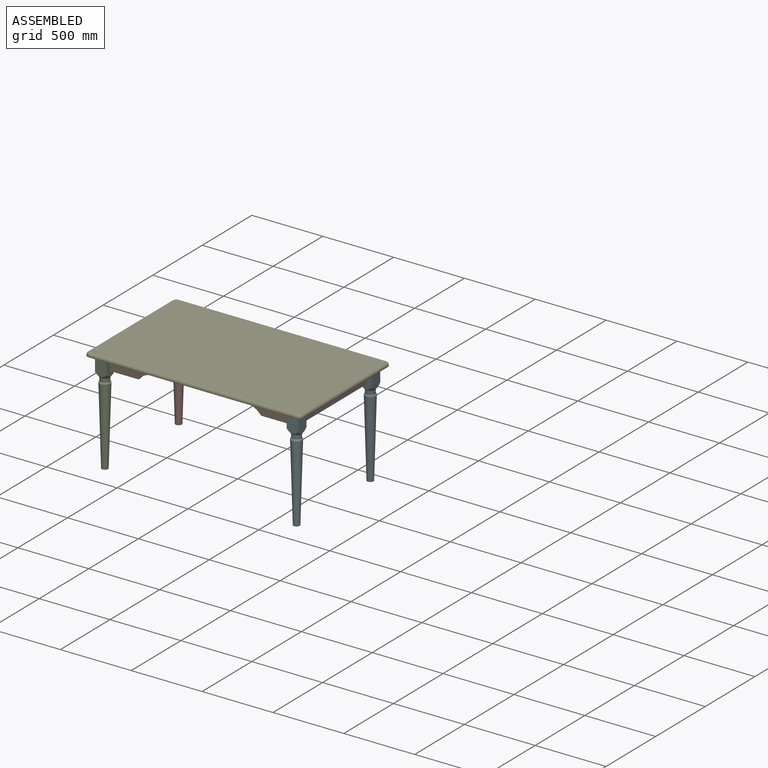
[diagram: assembled view]
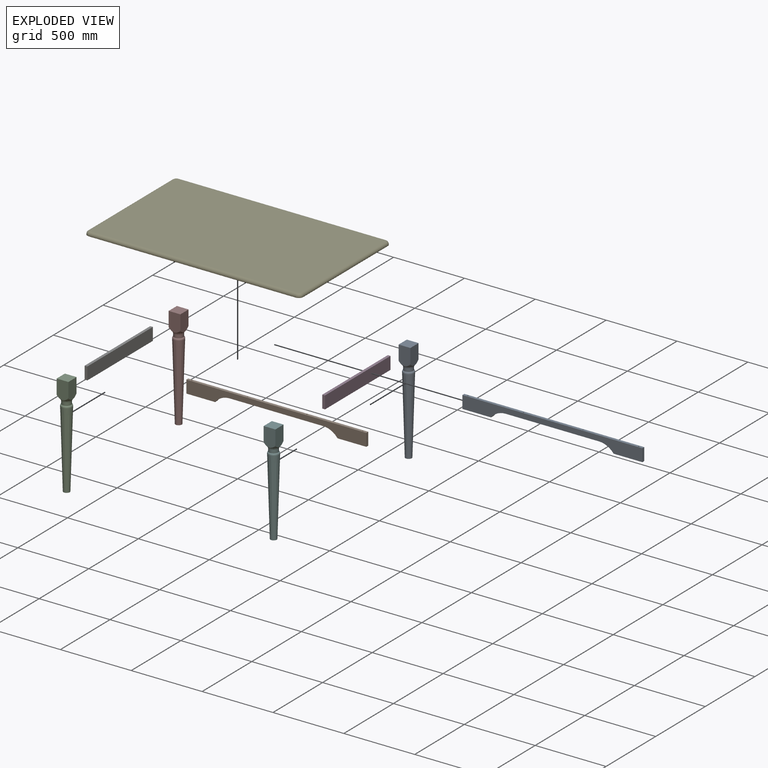
[diagram: exploded view]
GUIDED TOUR — MATED ASSEMBLY (Onshape document 7cd60d797cd535b59eb3e739, AutoMate assembly 7cd60d797cd535b59eb3e739_82e53eb9be413ad200fd0cf4_9cd672948b38c9585e956409_default)

This assembly has 9 components, labeled P0..P8 below (a component is one placed occurrence of a part; the same part can appear more than once), held together by 8 mates. A mate is a constraint between two components; its type names the relative motion it leaves free:
  FASTENED — locks the two components together rigidly (no relative motion).
Axis/direction vectors are unit vectors and 'through' points are millimeter coordinates, both in the assembly's world frame.

MATES
  1. FASTENED "Fastened 4": P3 <-> P0, direction (0.000, 1.000, 0.000) through (676.27, 330.20, 0.00) mm
  2. FASTENED "Fastened 3": P3 <-> P5, direction (0.000, -1.000, 0.000) through (676.27, -330.20, 0.00) mm
  3. FASTENED "Fastened 8": P4 <-> P2, direction (0.000, 0.000, -1.000) through (0.00, 0.00, 0.00) mm
  4. FASTENED "Fastened 5": P1 <-> P2, direction (-1.000, 0.000, 0.000) through (-635.00, -371.48, 0.00) mm
  5. FASTENED "Fastened 1": P6 <-> P7, direction (0.000, 1.000, 0.000) through (-676.27, 330.20, 0.00) mm
  6. FASTENED "Fastened 7": P8 <-> P0, direction (1.000, 0.000, 0.000) through (635.00, 371.48, 0.00) mm
  7. FASTENED "Fastened 6": P8 <-> P7, direction (-1.000, 0.000, 0.000) through (-635.00, 371.48, 0.00) mm
  8. FASTENED "Fastened 2": P6 <-> P2, direction (0.000, -1.000, 0.000) through (-676.27, -330.20, 0.00) mm

ASSEMBLY ORDER
  1. P7 — the base component [order verified]
  2. P6 [order verified]
  3. P3 [order verified]
  4. P0 [order verified]
  5. P2 [order verified]
  6. P5 [order verified]
  7. P1 [order verified]
  8. P8 [order verified]
  9. P4 [order verified]
Order-tag legend:
  [order verified] — this step's position reverses a verified removal order: the component was checked to insert without passing through the ones already placed.

Of the 9 components, 5 carry the full construction recipe — the FeatureScript program that regenerates the part's solid from scratch; the rest are supplied as boundary geometry only.
Each toured component is shown spotlighted twice — in the assembled view, then in the exploded view, where a leader line traces a displaced component back to its assembled socket (saturated green if recipe-attached, orange if geometry-only; every other component desaturated gray) — followed by its recipe or geometry summary and the mates that hold it.
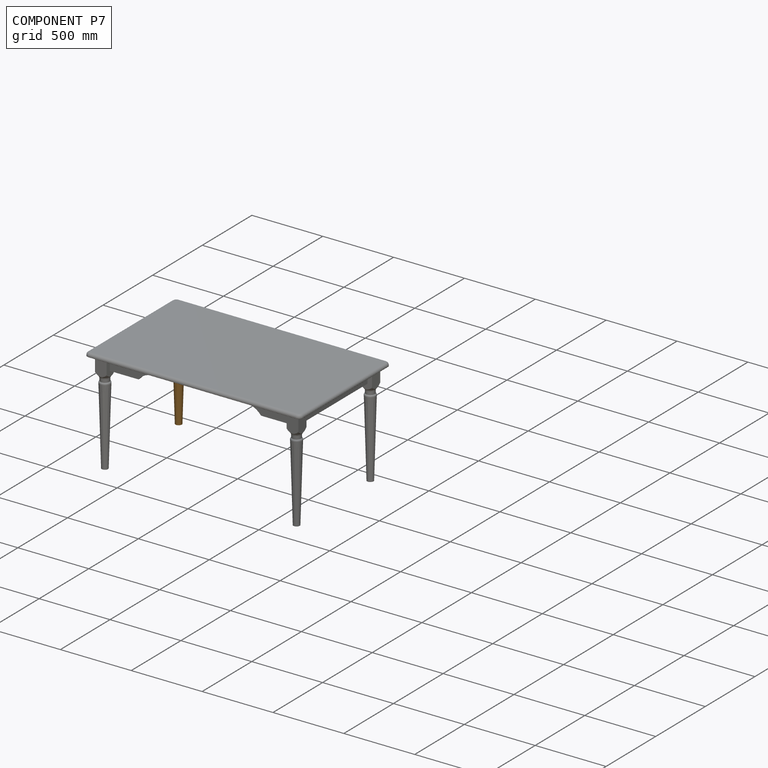
[diagram: component P7 — assembled]
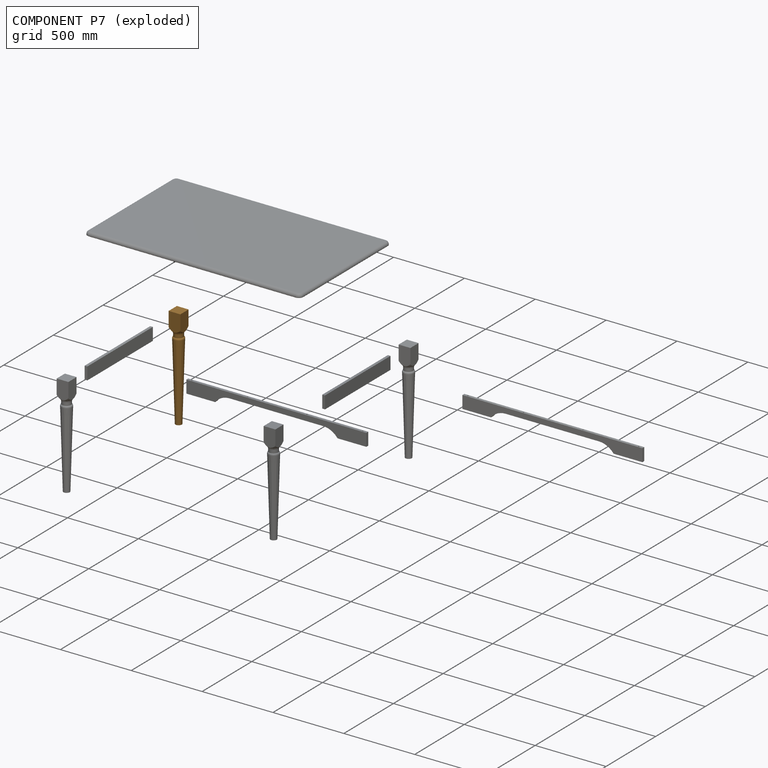
[diagram: component P7 — exploded]
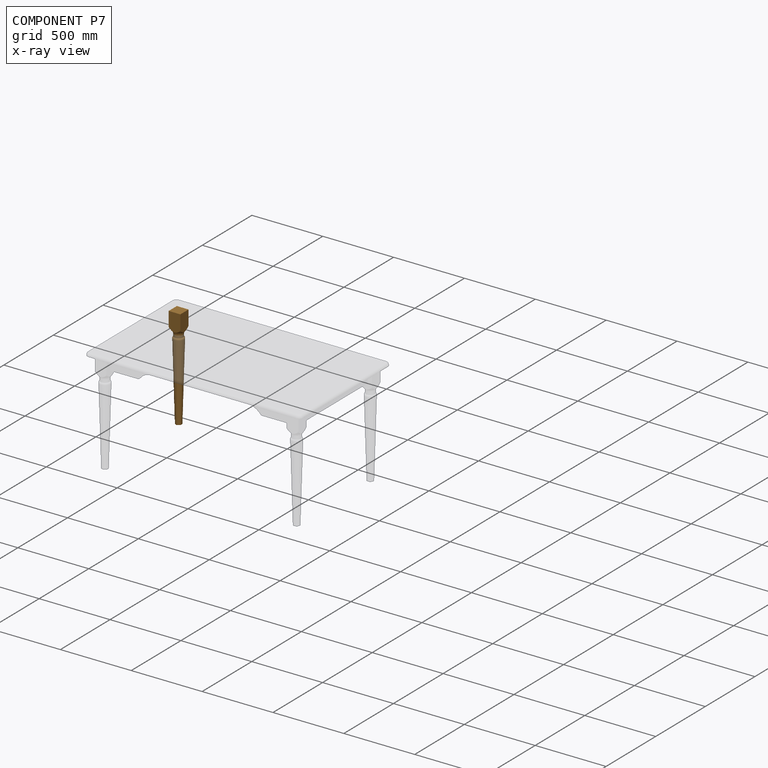
[diagram: component P7 — x-ray view]
COMPONENT P7 — geometry summary (no construction recipe available for this part):
  bounding box: 723.9 x 116.7 x 116.7 mm
  B-rep topology: 1 solid, 11 faces, 46 edges
  volume: 2639984 mm^3 (27% of its bounding box)
  symmetry: 4-fold rotationally symmetric about the z axis; mirror-symmetric across its x mid-plane, y mid-plane
Held by: FASTENED mate "Fastened 1" to P6; FASTENED mate "Fastened 6" to P8.
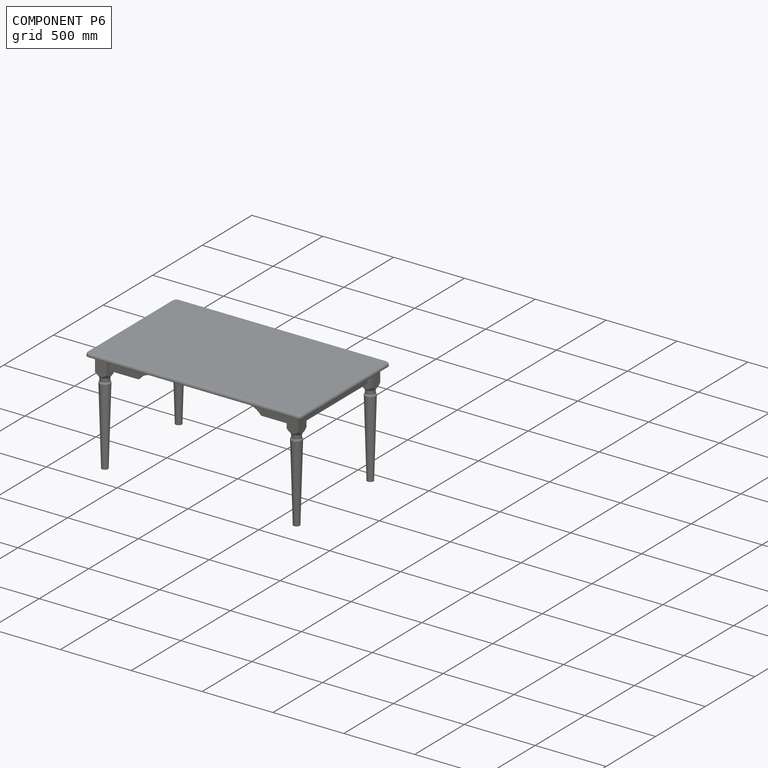
[diagram: component P6 — assembled]
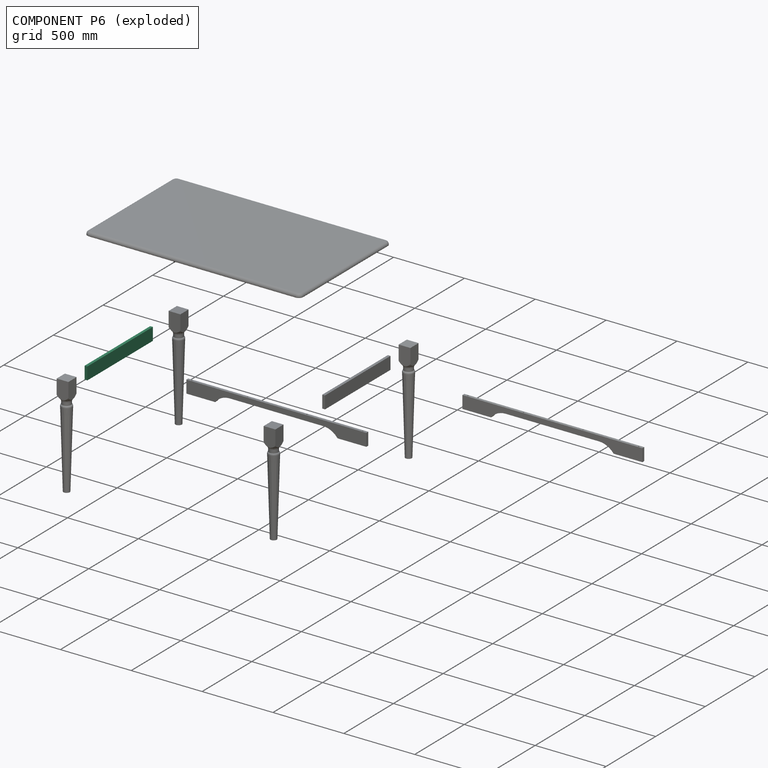
[diagram: component P6 — exploded]
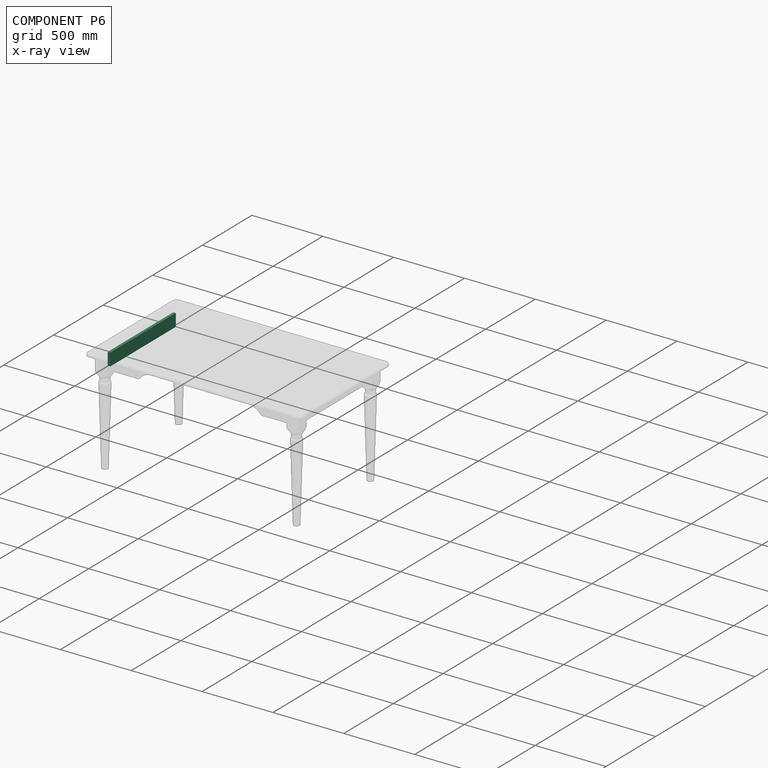
[diagram: component P6 — x-ray view]
COMPONENT P6 — same part as P3 (CADFS 00419990); its construction recipe is shown at P3.
Held by: FASTENED mate "Fastened 1" to P7; FASTENED mate "Fastened 2" to P2.
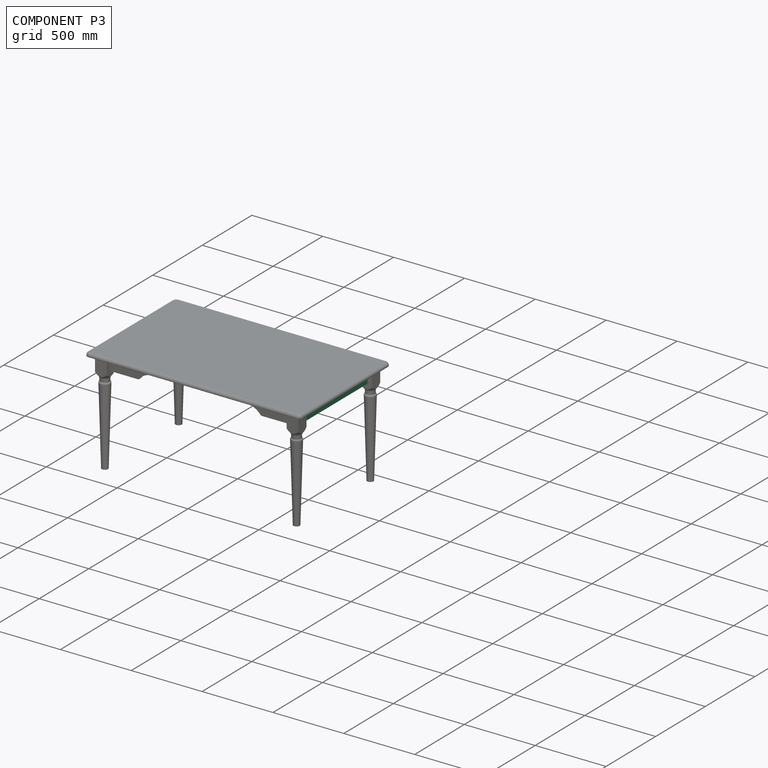
[diagram: component P3 — assembled]
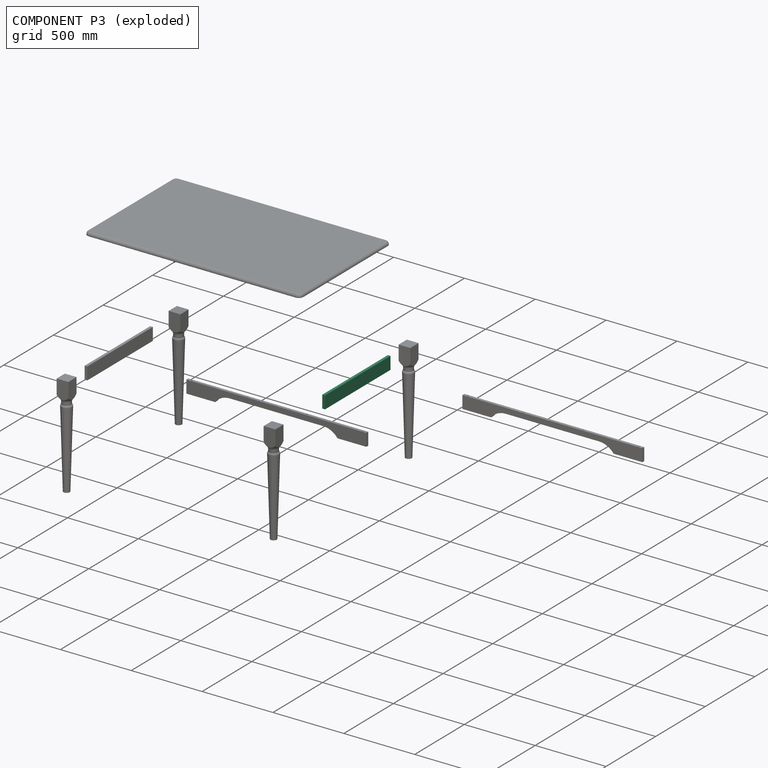
[diagram: component P3 — exploded]
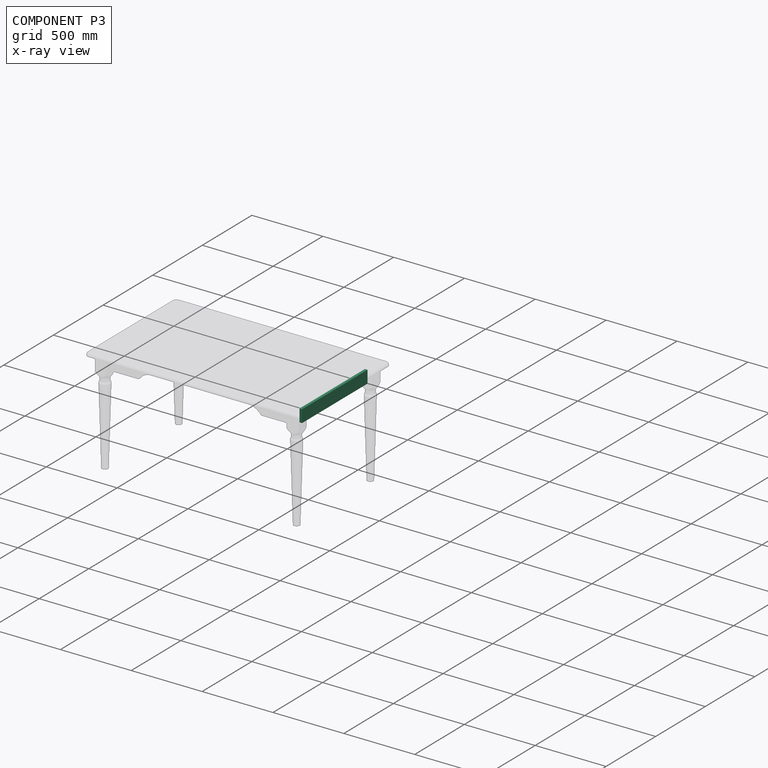
[diagram: component P3 — x-ray view]
COMPONENT P3 — recipe-attached (CADFS 00419990, mesh-verified: the recipe's output STEP matches this component's geometry to below the mesh-comparison resolution (tessellation chordal tolerance ~1 mm)).
Held by: FASTENED mate "Fastened 4" to P0; FASTENED mate "Fastened 3" to P5.
Construction recipe (FeatureScript — the CAD program that rebuilds this solid; sketch coordinates are in the units given by the * unit suffixes, e.g. mm):

FeatureScript 1511;
import(path : "onshape/std/geometry.fs", version : "1511.0");
import(path : "onshape/std/common.fs", version : "1511.0");
const mm = millimeter;
const VERTEX = EntityType.VERTEX;
const EDGE = EntityType.EDGE;
const FACE = EntityType.FACE;
const BODY = EntityType.BODY;
function v(x, y){return vector(x, y);}
function OD(order){return orderDisambiguation(order);}
function OSD(set){return originalSetDisambiguation(set);}
function TD(topology){return topologyDisambiguation(topology);}
function TDD(query){return trueDependencyDisambiguation(query);}
function sQuery(a, b, c) {return sketchEntityQuery(a, b, c);}

annotation { "Feature Type Name" : "Feature", "Feature Type Description" : "" }
export const myFeature = defineFeature(function(context is Context, id is Id, definition is map)
    precondition{}
    {
        {
            var Q0;
            Q0=qCreatedBy(makeId("Top.planeOp"),FACE);
            var sketch = newSketch(context, id + "F0", { "sketchPlane" : qUnion([Q0])});
            skLineSegment(sketch, "E0.bottom", {"start": v(0, 0) * mm, "end": v(660.4, 0) * mm});
            skLineSegment(sketch, "E0.top", {"start": v(0, 88.9) * mm, "end": v(660.4, 88.9) * mm});
            skLineSegment(sketch, "E0.left", {"start": v(0, 0) * mm, "end": v(0, 88.9) * mm});
            skLineSegment(sketch, "E0.right", {"start": v(660.4, 0) * mm, "end": v(660.4, 88.9) * mm});
            skSolve(sketch);
        }
        {
            var Q0;
            Q0=makeQuery(id+"F0.imprint","IMPRINT",FACE,{"disambiguationData":[TD([[makeQuery(id+"F0.imprint","IMPRINT",EDGE,{"derivedFrom":sQuery(id+"F0.wireOp",EDGE,"E0.bottom")}),1.0]])]});
            extrude(context, id + "F1", {"entities" : qUnion([Q0]), "depth" : 19.05 * mm});
        }
    });
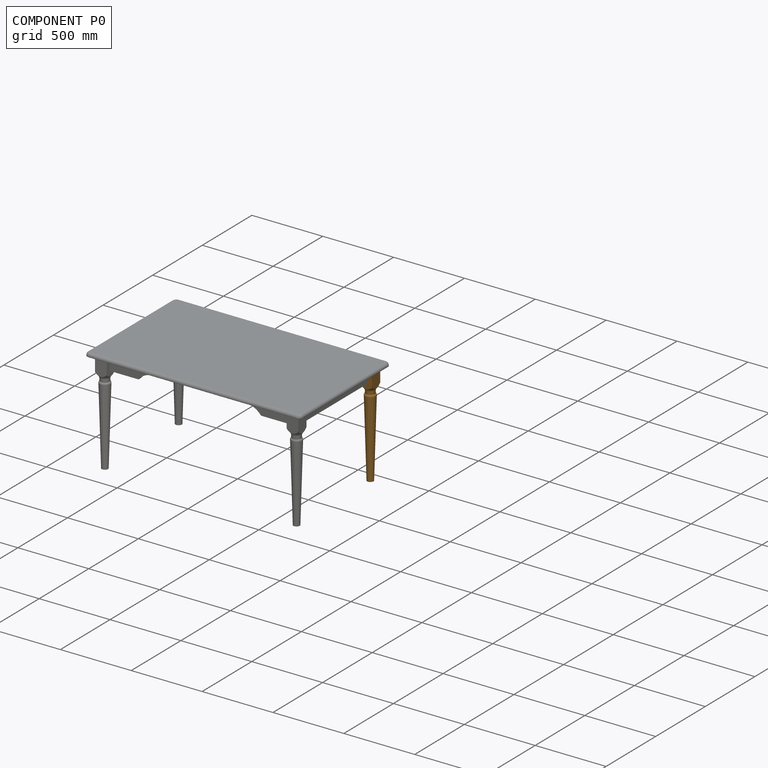
[diagram: component P0 — assembled]
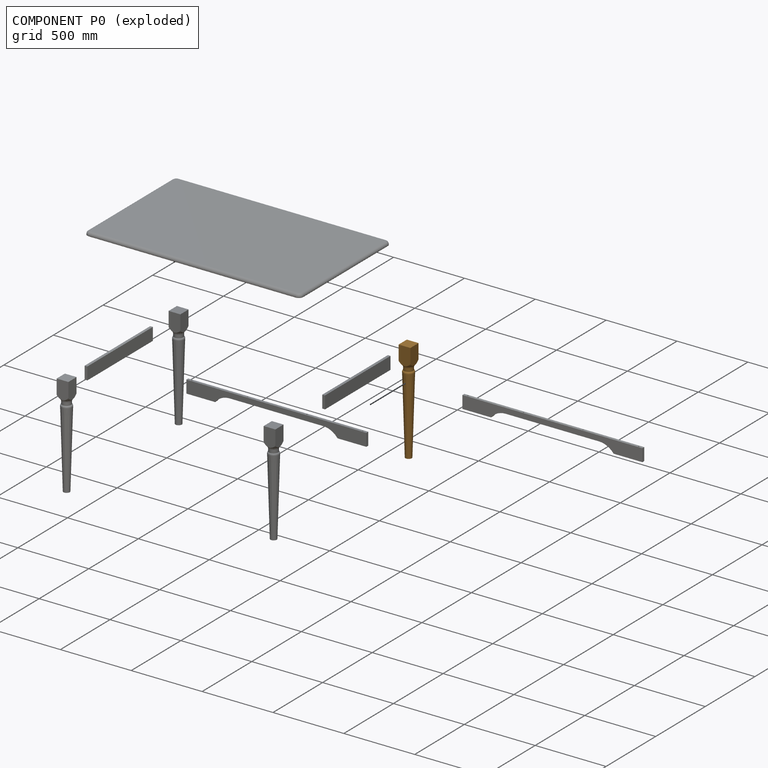
[diagram: component P0 — exploded]
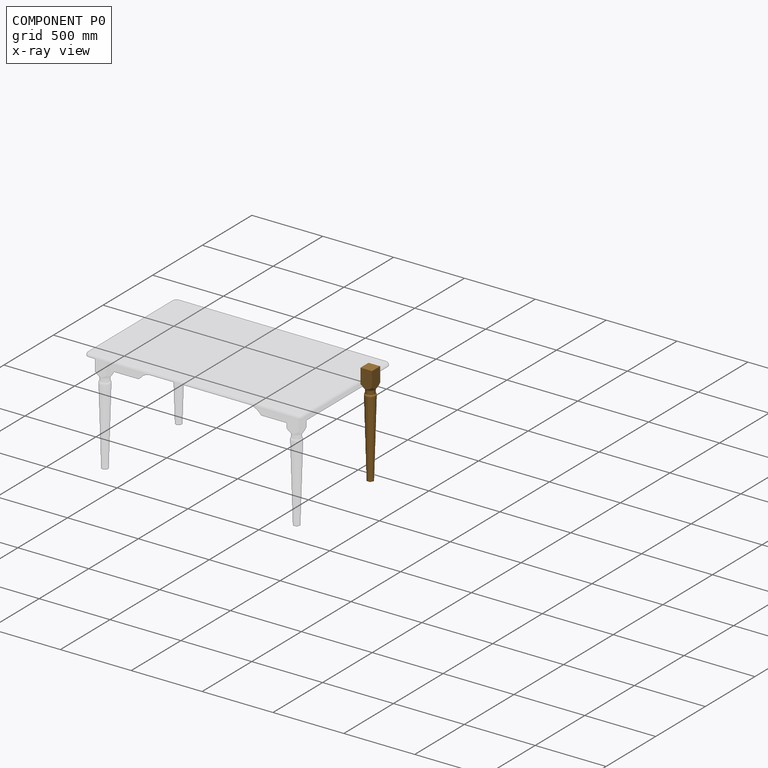
[diagram: component P0 — x-ray view]
COMPONENT P0 — geometry summary (no construction recipe available for this part):
  bounding box: 723.9 x 116.7 x 116.7 mm
  B-rep topology: 1 solid, 11 faces, 46 edges
  volume: 2639984 mm^3 (27% of its bounding box)
  symmetry: 4-fold rotationally symmetric about the z axis; mirror-symmetric across its x mid-plane, y mid-plane
Held by: FASTENED mate "Fastened 4" to P3; FASTENED mate "Fastened 7" to P8.
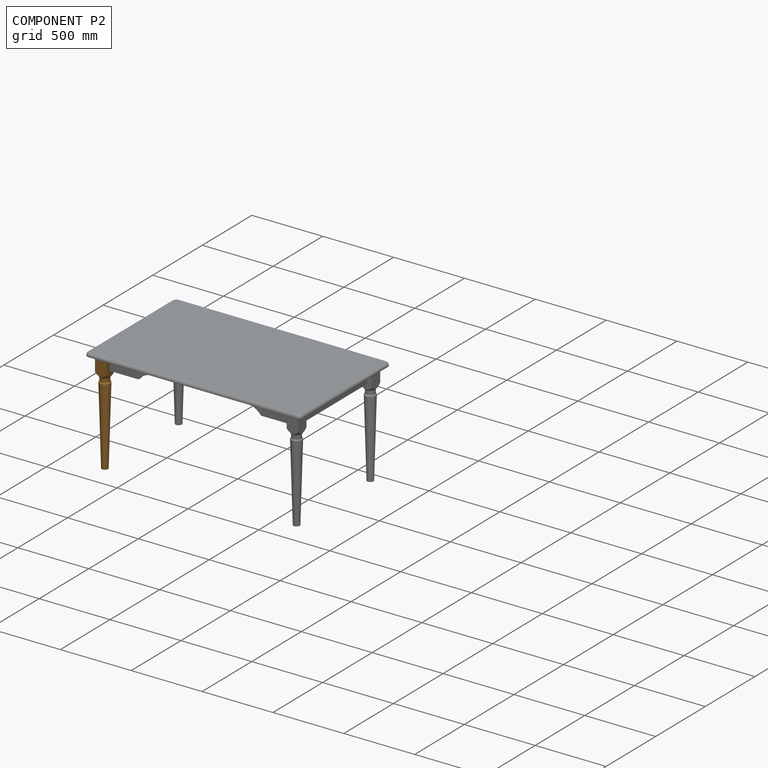
[diagram: component P2 — assembled]
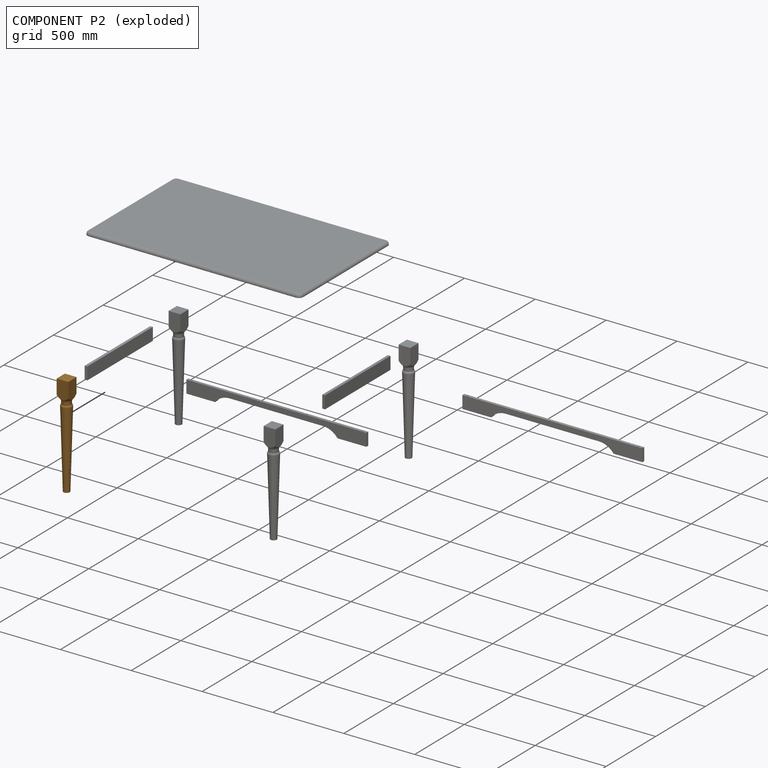
[diagram: component P2 — exploded]
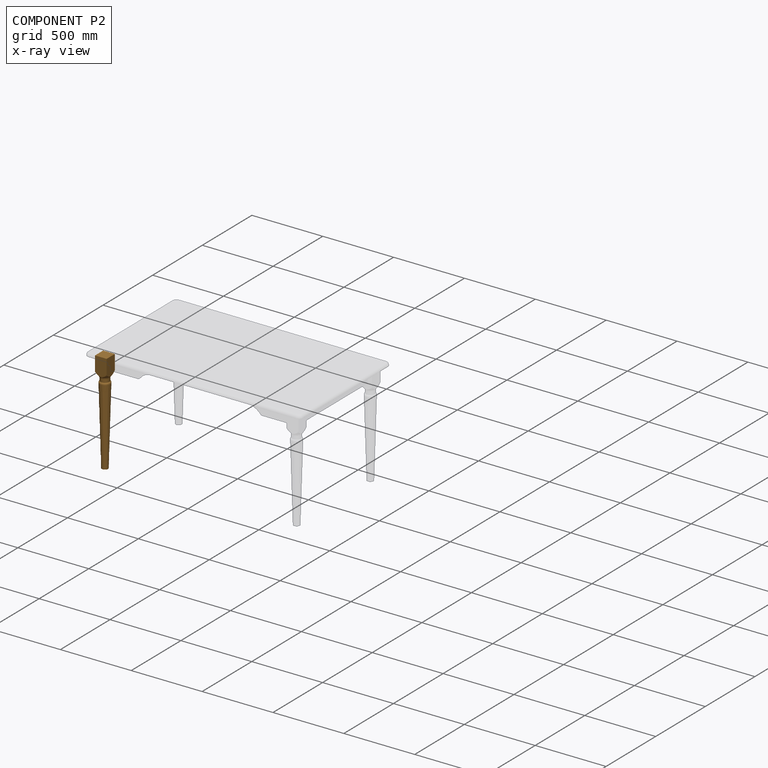
[diagram: component P2 — x-ray view]
COMPONENT P2 — geometry summary (no construction recipe available for this part):
  bounding box: 723.9 x 116.7 x 116.7 mm
  B-rep topology: 1 solid, 11 faces, 46 edges
  volume: 2639984 mm^3 (27% of its bounding box)
  symmetry: 4-fold rotationally symmetric about the z axis; mirror-symmetric across its x mid-plane, y mid-plane
Held by: FASTENED mate "Fastened 8" to P4; FASTENED mate "Fastened 5" to P1; FASTENED mate "Fastened 2" to P6.
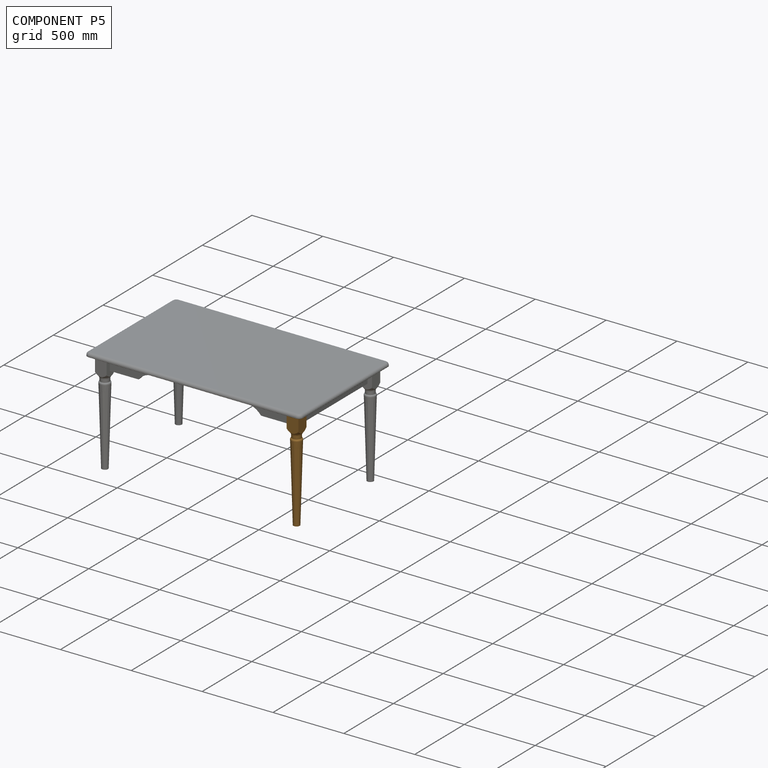
[diagram: component P5 — assembled]
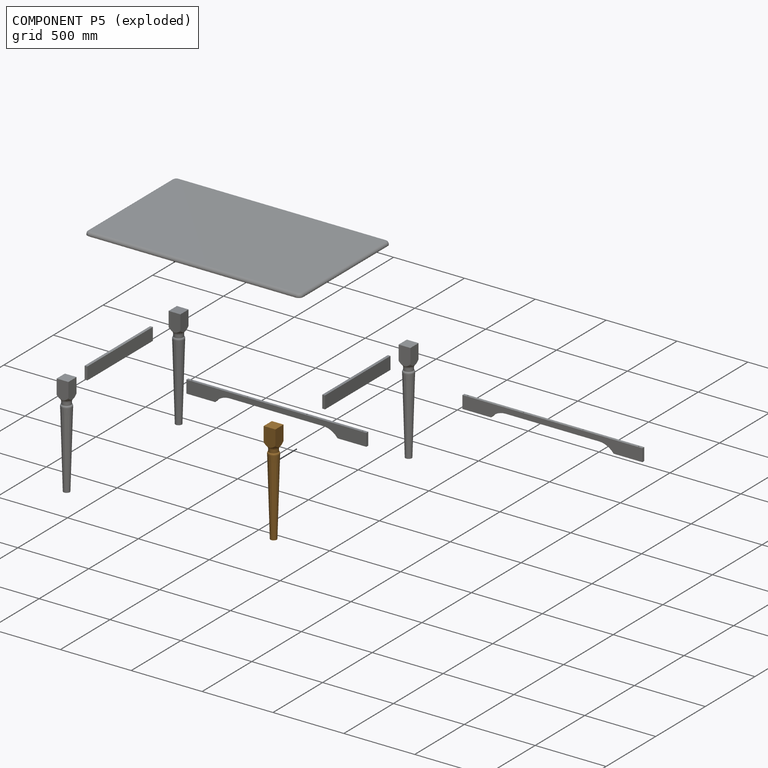
[diagram: component P5 — exploded]
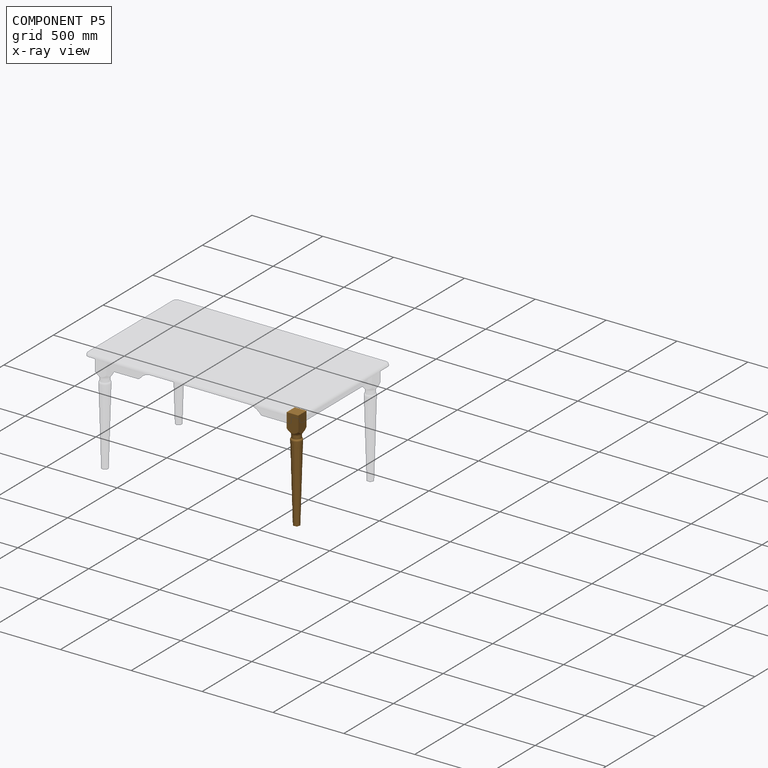
[diagram: component P5 — x-ray view]
COMPONENT P5 — geometry summary (no construction recipe available for this part):
  bounding box: 723.9 x 116.7 x 116.7 mm
  B-rep topology: 1 solid, 11 faces, 46 edges
  volume: 2639984 mm^3 (27% of its bounding box)
  symmetry: 4-fold rotationally symmetric about the z axis; mirror-symmetric across its x mid-plane, y mid-plane
Held by: FASTENED mate "Fastened 3" to P3.
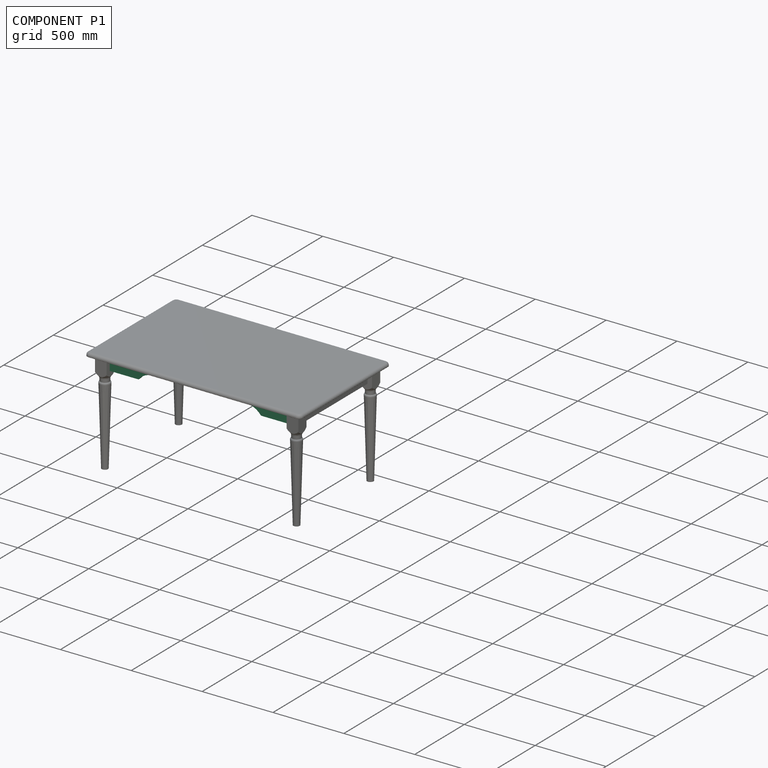
[diagram: component P1 — assembled]
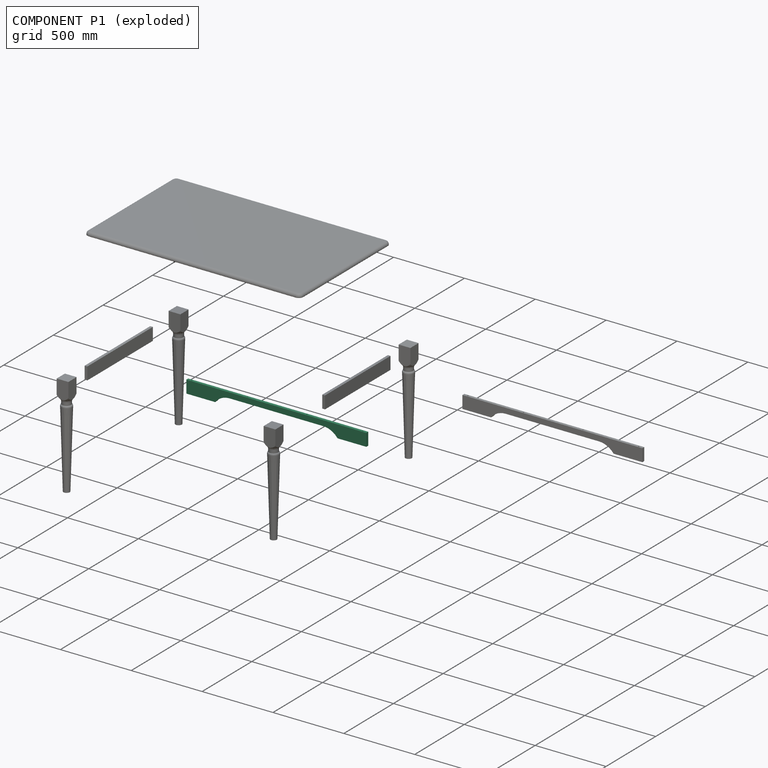
[diagram: component P1 — exploded]
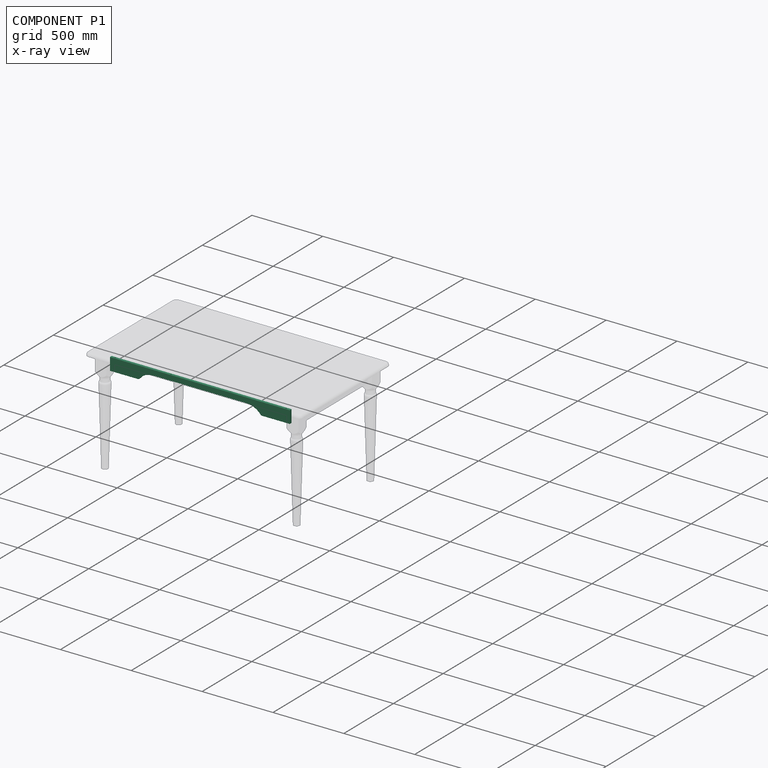
[diagram: component P1 — x-ray view]
COMPONENT P1 — recipe-attached (CADFS 00419988, mesh-verified: the recipe's output STEP matches this component's geometry to below the mesh-comparison resolution (tessellation chordal tolerance ~1.91 mm)).
Held by: FASTENED mate "Fastened 5" to P2.
Construction recipe (FeatureScript — the CAD program that rebuilds this solid; sketch coordinates are in the units given by the * unit suffixes, e.g. mm):

FeatureScript 1511;
import(path : "onshape/std/geometry.fs", version : "1511.0");
import(path : "onshape/std/common.fs", version : "1511.0");
const mm = millimeter;
const VERTEX = EntityType.VERTEX;
const EDGE = EntityType.EDGE;
const FACE = EntityType.FACE;
const BODY = EntityType.BODY;
function v(x, y){return vector(x, y);}
function OD(order){return orderDisambiguation(order);}
function OSD(set){return originalSetDisambiguation(set);}
function TD(topology){return topologyDisambiguation(topology);}
function TDD(query){return trueDependencyDisambiguation(query);}
function sQuery(a, b, c) {return sketchEntityQuery(a, b, c);}

annotation { "Feature Type Name" : "Feature", "Feature Type Description" : "" }
export const myFeature = defineFeature(function(context is Context, id is Id, definition is map)
    precondition{}
    {
        {
            var Q0;
            Q0=qCreatedBy(makeId("Top.planeOp"),FACE);
            var sketch = newSketch(context, id + "F0", { "sketchPlane" : qUnion([Q0])});
            skLineSegment(sketch, "E0.bottom", {"start": v(0, 0) * mm, "end": v(203.2, 0) * mm});
            skLineSegment(sketch, "E0.top", {"start": v(0, 88.9) * mm, "end": v(1270, 88.9) * mm});
            skLineSegment(sketch, "E0.left", {"start": v(0, 0) * mm, "end": v(0, 88.9) * mm});
            skLineSegment(sketch, "E0.right", {"start": v(1270, 0) * mm, "end": v(1270, 88.9) * mm});
            skLineSegment(sketch, "E1", {"start": v(304.8, 50.8) * mm, "end": v(965.2, 50.8) * mm});
            skArc(sketch, "E2", {"start": v(304.8, 50.8) * mm, "mid": v(248, 37.4) * mm, "end": v(203.2, 0) * mm});
            skArc(sketch, "E3", {"start": v(965.2, 50.8) * mm, "mid": v(1022, 37.4) * mm, "end": v(1066.8, 0) * mm});
            skLineSegment(sketch, "E4", {"start": v(1066.8, 0) * mm, "end": v(1270, 0) * mm});
            skSolve(sketch);
        }
        {
            var Q0;
            Q0=makeQuery(id+"F0.imprint","IMPRINT",FACE,{"disambiguationData":[TD([[makeQuery(id+"F0.imprint","IMPRINT",EDGE,{"derivedFrom":sQuery(id+"F0.wireOp",EDGE,"E0.bottom")}),1.0]])]});
            extrude(context, id + "F1", {"entities" : qUnion([Q0]), "depth" : 19.05 * mm});
        }
        {
            var Q0;
            Q0=makeQuery(id+"F1.opExtrude","SWEPT_FACE",FACE,{"disambiguationData":[OSD([sQuery(id+"F0.wireOp",EDGE,"E0.bottom")])]});
            var sketch = newSketch(context, id + "F2", { "sketchPlane" : qUnion([Q0])});
            skCircle(sketch, "E5", {"center": v(31.75, 9.52) * mm, "radius": 4.76 * mm});
            skCircle(sketch, "E6", {"center": v(425.45, 9.53) * mm, "radius": 4.76 * mm});
            skLineSegment(sketch, "E7", {"start": v(0, 9.52) * mm, "end": v(1270, 9.53) * mm, "construction": true});
            skCircle(sketch, "E8.MirrorC", {"center": v(844.55, 9.53) * mm, "radius": 4.76 * mm});
            skCircle(sketch, "E9.MirrorC", {"center": v(1238.25, 9.53) * mm, "radius": 4.76 * mm});
            skSolve(sketch);
        }
        {
            var Q0;
            Q0=sQuery(id+"F2.wireOp",VERTEX,"E5.center");
            var Q1;
            Q1=sQuery(id+"F2.wireOp",VERTEX,"E6.center");
            var Q2;
            Q2=sQuery(id+"F2.wireOp",VERTEX,"E8.MirrorC.center");
            var Q3;
            Q3=sQuery(id+"F2.wireOp",VERTEX,"E9.MirrorC.center");
            var Q4;
            Q4=makeQuery(id+"F1.opExtrude","SWEPT_BODY",BODY,{"disambiguationData":[OSD([sQuery(id+"F0.wireOp",EDGE,"E0.bottom"),sQuery(id+"F0.wireOp",EDGE,"E0.top"),sQuery(id+"F0.wireOp",EDGE,"E0.left"),sQuery(id+"F0.wireOp",EDGE,"E0.right")])]});
            hole(context, id + "F3", {"style" : HoleStyle.SIMPLE, "endStyle" : HoleEndStyle.THROUGH, "holeDiameter" : 9.52 * mm, "isTappedThrough" : true, "tappedDepth" : 12.7 * mm, "tapClearance" : 3, "locations" : qUnion([Q0, Q1, Q2, Q3]), "scope" : qUnion([Q4])});
        }
        {
            var Q0;
            Q0=makeQuery(id+"F1.opExtrude","SWEPT_EDGE",EDGE,{"disambiguationData":[OSD([sQuery(id+"F0.wireOp",EDGE,"E0.bottom"),sQuery(id+"F0.wireOp",EDGE,"E2")])]});
            var Q1;
            Q1=makeQuery(id+"F1.opExtrude","SWEPT_EDGE",EDGE,{"disambiguationData":[OSD([sQuery(id+"F0.wireOp",EDGE,"E3"),sQuery(id+"F0.wireOp",EDGE,"E4")])]});
            fillet(context, id + "F4", {"entities" : qUnion([Q0, Q1]), "radius" : 5.08 * mm, "tangentPropagation" : true, "allowEdgeOverflow" : false});
        }
    });
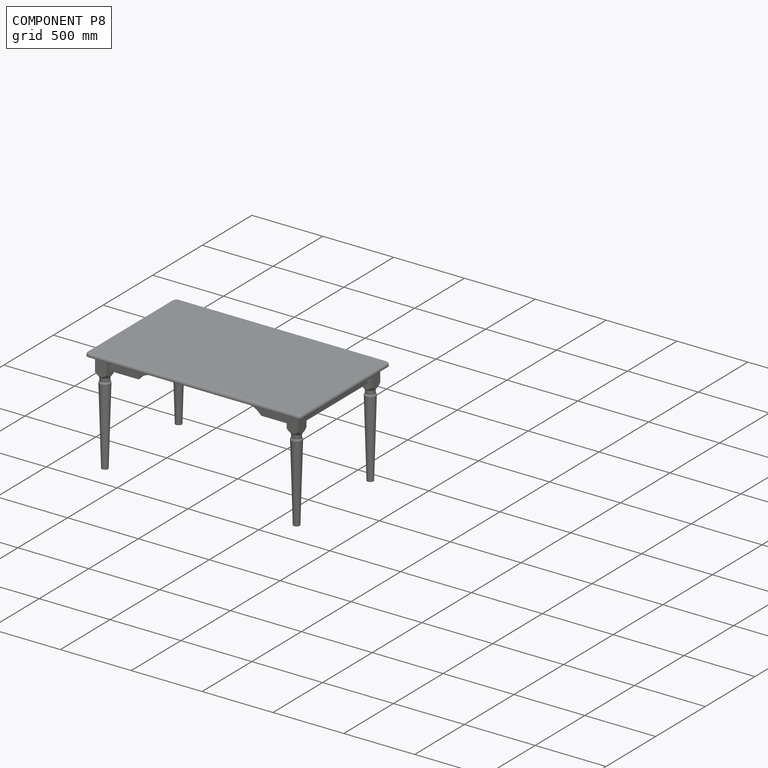
[diagram: component P8 — assembled]
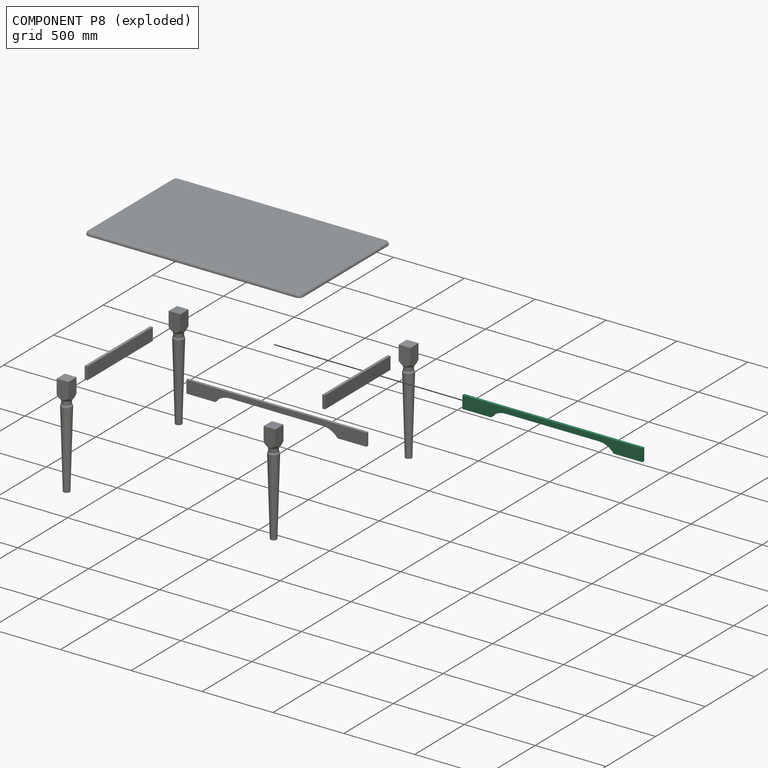
[diagram: component P8 — exploded]
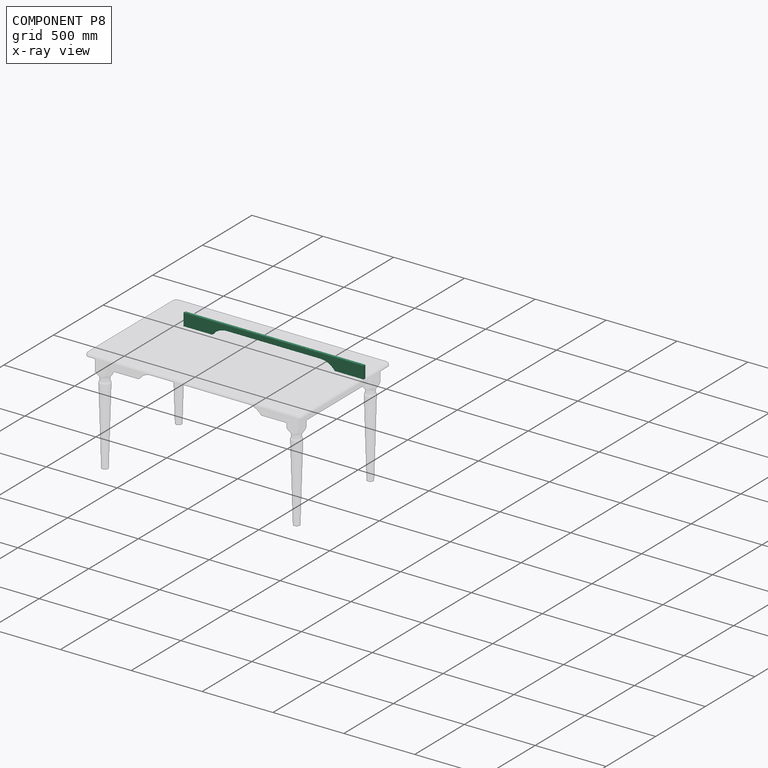
[diagram: component P8 — x-ray view]
COMPONENT P8 — same part as P1 (CADFS 00419988); its construction recipe is shown at P1.
Held by: FASTENED mate "Fastened 7" to P0; FASTENED mate "Fastened 6" to P7.
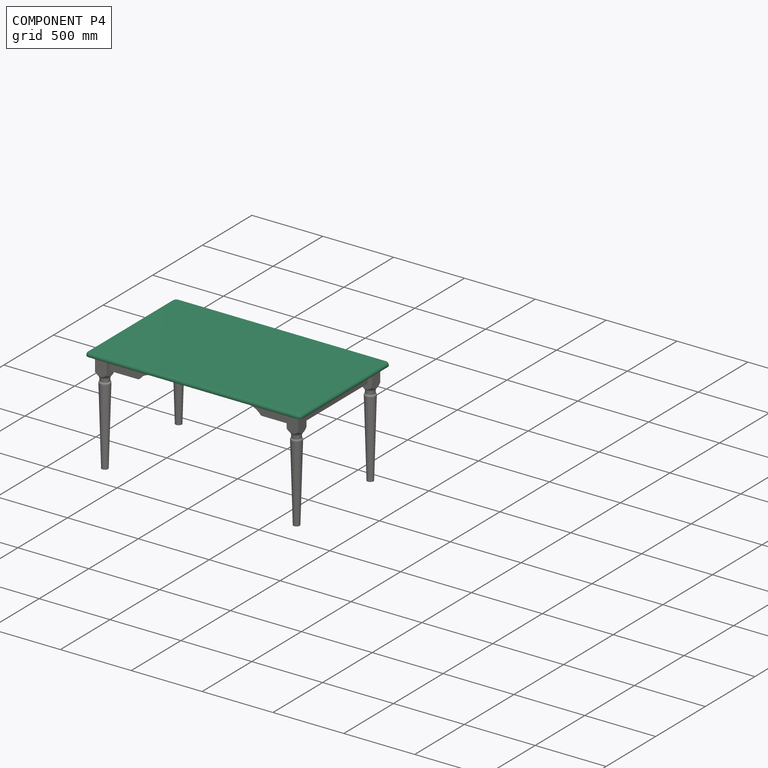
[diagram: component P4 — assembled]
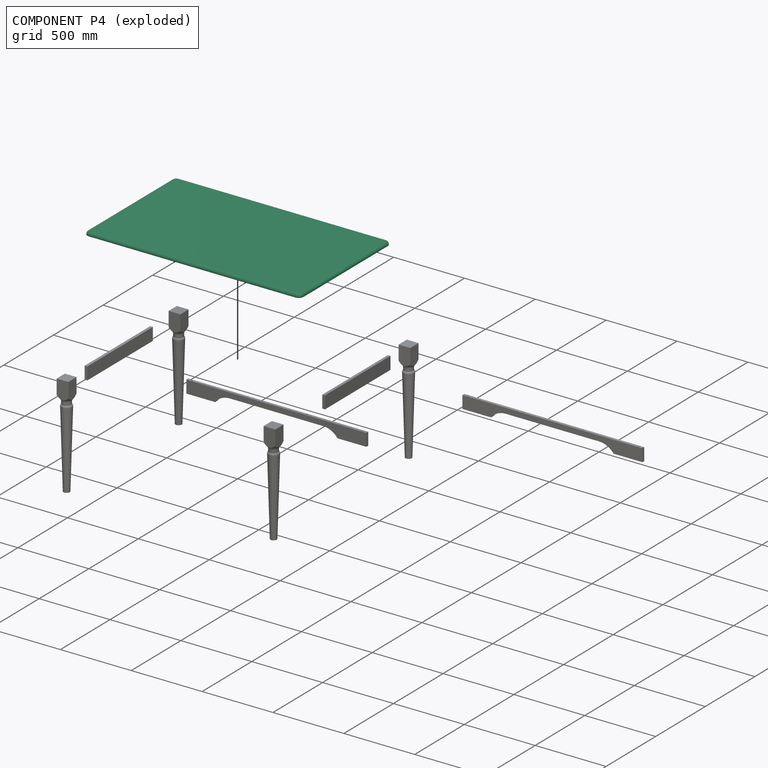
[diagram: component P4 — exploded]
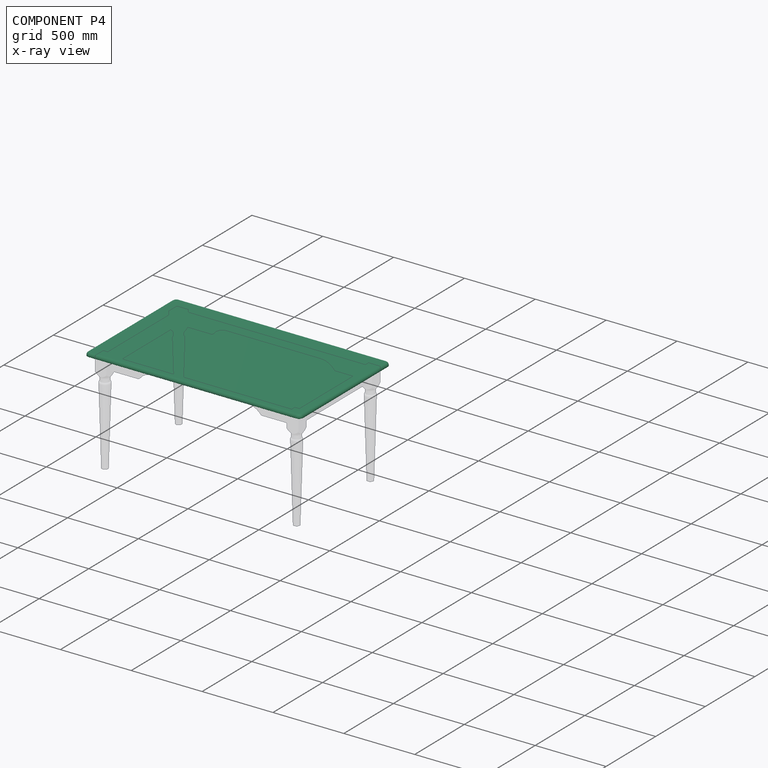
[diagram: component P4 — x-ray view]
COMPONENT P4 — recipe-attached (CADFS 00419989, mesh-verified: the recipe's output STEP matches this component's geometry to below the mesh-comparison resolution (tessellation chordal tolerance ~2.67 mm)).
Held by: FASTENED mate "Fastened 8" to P2.
Construction recipe (FeatureScript — the CAD program that rebuilds this solid; sketch coordinates are in the units given by the * unit suffixes, e.g. mm):

FeatureScript 1511;
import(path : "onshape/std/geometry.fs", version : "1511.0");
import(path : "onshape/std/common.fs", version : "1511.0");
const mm = millimeter;
const VERTEX = EntityType.VERTEX;
const EDGE = EntityType.EDGE;
const FACE = EntityType.FACE;
const BODY = EntityType.BODY;
function v(x, y){return vector(x, y);}
function OD(order){return orderDisambiguation(order);}
function OSD(set){return originalSetDisambiguation(set);}
function TD(topology){return topologyDisambiguation(topology);}
function TDD(query){return trueDependencyDisambiguation(query);}
function sQuery(a, b, c) {return sketchEntityQuery(a, b, c);}

annotation { "Feature Type Name" : "Feature", "Feature Type Description" : "" }
export const myFeature = defineFeature(function(context is Context, id is Id, definition is map)
    precondition{}
    {
        {
            var Q0;
            Q0=qCreatedBy(makeId("Top.planeOp"),FACE);
            var sketch = newSketch(context, id + "F0", { "sketchPlane" : qUnion([Q0])});
            skLineSegment(sketch, "E0.bottom", {"start": v(31.75, 0) * mm, "end": v(1492.25, 0) * mm});
            skLineSegment(sketch, "E0.top", {"start": v(31.75, 914.4) * mm, "end": v(1492.25, 914.4) * mm});
            skLineSegment(sketch, "E0.left", {"start": v(0, 31.75) * mm, "end": v(0, 882.65) * mm});
            skLineSegment(sketch, "E0.right", {"start": v(1524, 31.75) * mm, "end": v(1524, 882.65) * mm});
            skPoint(sketch, "E1.visualSharp", {"position": v(0, 914.4) * mm});
            skArc(sketch, "E1.filletArc", {"start": v(31.75, 914.4) * mm, "mid": v(9.3, 905.1) * mm, "end": v(0, 882.65) * mm});
            skPoint(sketch, "E2.visualSharp", {"position": v(1524, 914.4) * mm});
            skArc(sketch, "E2.filletArc", {"start": v(1524, 882.65) * mm, "mid": v(1514.7, 905.1) * mm, "end": v(1492.25, 914.4) * mm});
            skPoint(sketch, "E3.visualSharp", {"position": v(1524, 0) * mm});
            skArc(sketch, "E3.filletArc", {"start": v(1492.25, 0) * mm, "mid": v(1514.7, 9.3) * mm, "end": v(1524, 31.75) * mm});
            skPoint(sketch, "E4.visualSharp", {"position": v(0, 0) * mm});
            skArc(sketch, "E4.filletArc", {"start": v(0, 31.75) * mm, "mid": v(9.3, 9.3) * mm, "end": v(31.75, 0) * mm});
            skSolve(sketch);
        }
        {
            var Q0;
            Q0=makeQuery(id+"F0.imprint","IMPRINT",FACE,{"disambiguationData":[TD([[makeQuery(id+"F0.imprint","IMPRINT",EDGE,{"derivedFrom":sQuery(id+"F0.wireOp",EDGE,"E0.bottom")}),1.0]])]});
            extrude(context, id + "F1", {"entities" : qUnion([Q0]), "depth" : 25.4 * mm});
        }
        {
            var Q0;
            Q0=makeQuery(id+"F1.opExtrude","CAP_EDGE",EDGE,{"disambiguationData":[OSD([sQuery(id+"F0.wireOp",EDGE,"E0.bottom")])],"isStart":true});
            fillet(context, id + "F2", {"entities" : qUnion([Q0]), "radius" : 3.17 * mm, "tangentPropagation" : true, "allowEdgeOverflow" : false});
        }
        {
            var Q0;
            Q0=makeQuery(id+"F1.opExtrude","CAP_EDGE",EDGE,{"disambiguationData":[OSD([sQuery(id+"F0.wireOp",EDGE,"E0.bottom")])],"isStart":false});
            fillet(context, id + "F3", {"entities" : qUnion([Q0]), "radius" : 19.05 * mm, "tangentPropagation" : true, "allowEdgeOverflow" : false});
        }
    });
PROVENANCE & LICENSES
Assembly (occurrences, transforms, mates, per-part STEP geometry): AutoMate dataset, Zenodo record 7776208, CC0.
Construction recipes: CADFS (HuggingFace VladPyatov/CADFS, CC-BY-4.0, layered over the ABC dataset), FeatureScript reconstruction programs keyed by ABC model id.
Join: ABC meta listings map ABC model id -> Onshape documentId; within a shared document, parts are matched by geometric signature (bounding-box dims + volume at 0.1% relative tolerance, exact B-rep face/solid counts).
Verification: 5 of this assembly's 9 components carry a recipe attachment, and every attachment is mesh-verified: the CADFS STEP and the AutoMate member STEP were compared as meshes in their shared local frame (symmetric sampled-point-to-mesh distance); worst across the 5 attachments: below the mesh-comparison resolution (tessellation chordal tolerance ~2.67 mm) on a 1777 mm part.
Renders: orthographic iso camera (az 35 / el 25); the floor grid conveys scale (grid pitch printed in each image; no ruler). In the exploded view each component is displaced by its stored offset vector: the offsets alone carry the explosion direction (mate normal/axis signs are not orientation cues and do not encode it), and separation distances are assigned per mate-chain, not proportionally to assembly-order depth.
